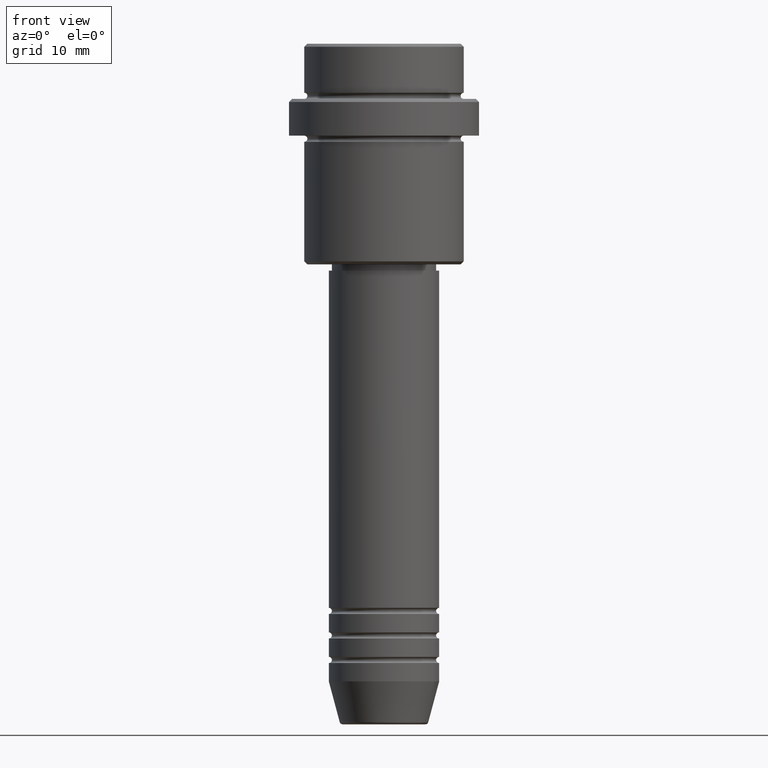
[diagram: clean part render]
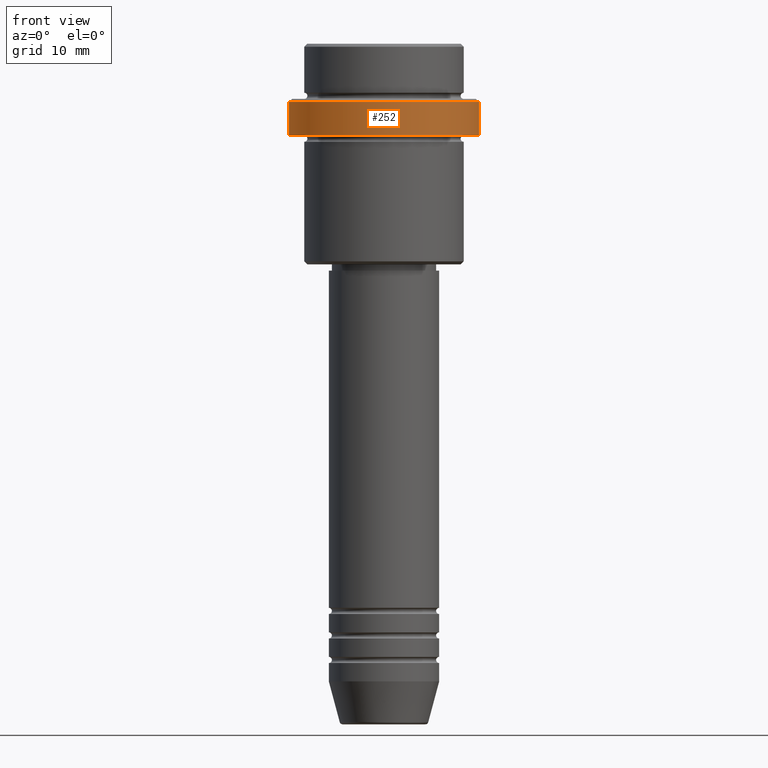
[diagram: same view with one face highlighted and labeled with its STEP entity id]
A machine part, front view. The second image highlights one B-rep face of the part: STEP entity #252.
In plain terms, the highlighted cylindrical surface (partial cylindrical patch) has radius 15.5 mm, axis along (-0, -0, 1).
Its self-contained STEP definition (entity closure, byte-faithful):
#15 = CYLINDRICAL_SURFACE ( 'NONE', #1055, 15.50000000000000000 ) ;
#17 = ORIENTED_EDGE ( 'NONE', *, *, #411, .T. ) ;
#59 = EDGE_LOOP ( 'NONE', ( #1164, #608, #17, #190 ) ) ;
#72 = EDGE_CURVE ( 'NONE', #233, #1320, #182, .T. ) ;
#123 = LINE ( 'NONE', #779, #505 ) ;
#148 = DIRECTION ( 'NONE',  ( -0.000000000000000000, -0.000000000000000000, 1.000000000000000000 ) ) ;
#182 = CIRCLE ( 'NONE', #986, 15.50000000000000000 ) ;
#190 = ORIENTED_EDGE ( 'NONE', *, *, #705, .T. ) ;
#233 = VERTEX_POINT ( 'NONE', #696 ) ;
#252 = ADVANCED_FACE ( 'NONE', ( #1305 ), #15, .T. ) ;
#371 = VERTEX_POINT ( 'NONE', #403 ) ;
#403 = CARTESIAN_POINT ( 'NONE',  ( 15.50000000000000000, 0.000000000000000000, -9.499999999999985789 ) ) ;
#411 = EDGE_CURVE ( 'NONE', #1320, #371, #549, .T. ) ;
#453 = DIRECTION ( 'NONE',  ( 1.000000000000000000, 0.000000000000000000, 0.000000000000000000 ) ) ;
#455 = CARTESIAN_POINT ( 'NONE',  ( 0.000000000000000000, 0.000000000000000000, 0.000000000000000000 ) ) ;
#481 = DIRECTION ( 'NONE',  ( 1.000000000000000000, 0.000000000000000000, 0.000000000000000000 ) ) ;
#500 = VECTOR ( 'NONE', #1185, 1000.000000000000000 ) ;
#505 = VECTOR ( 'NONE', #148, 1000.000000000000000 ) ;
#536 = DIRECTION ( 'NONE',  ( -0.000000000000000000, -0.000000000000000000, 1.000000000000000000 ) ) ;
#539 = CARTESIAN_POINT ( 'NONE',  ( 15.50000000000000000, 0.000000000000000000, 0.000000000000000000 ) ) ;
#549 = LINE ( 'NONE', #539, #500 ) ;
#596 = CARTESIAN_POINT ( 'NONE',  ( 0.000000000000000000, 0.000000000000000000, -15.00000000000000178 ) ) ;
#608 = ORIENTED_EDGE ( 'NONE', *, *, #72, .T. ) ;
#645 = VERTEX_POINT ( 'NONE', #1218 ) ;
#687 = DIRECTION ( 'NONE',  ( -0.000000000000000000, -0.000000000000000000, 1.000000000000000000 ) ) ;
#696 = CARTESIAN_POINT ( 'NONE',  ( -15.50000000000000000, 1.898202538678397557E-15, -15.00000000000000178 ) ) ;
#705 = EDGE_CURVE ( 'NONE', #371, #645, #793, .T. ) ;
#731 = CARTESIAN_POINT ( 'NONE',  ( 15.50000000000000000, 0.000000000000000000, -15.00000000000000178 ) ) ;
#755 = DIRECTION ( 'NONE',  ( 1.000000000000000000, 0.000000000000000000, 0.000000000000000000 ) ) ;
#779 = CARTESIAN_POINT ( 'NONE',  ( -15.50000000000000000, 1.898202538678397557E-15, 0.000000000000000000 ) ) ;
#793 = CIRCLE ( 'NONE', #1346, 15.50000000000000000 ) ;
#864 = DIRECTION ( 'NONE',  ( 0.000000000000000000, 0.000000000000000000, -1.000000000000000000 ) ) ;
#986 = AXIS2_PLACEMENT_3D ( 'NONE', #596, #687, #481 ) ;
#1055 = AXIS2_PLACEMENT_3D ( 'NONE', #455, #536, #755 ) ;
#1070 = EDGE_CURVE ( 'NONE', #233, #645, #123, .T. ) ;
#1164 = ORIENTED_EDGE ( 'NONE', *, *, #1070, .F. ) ;
#1185 = DIRECTION ( 'NONE',  ( -0.000000000000000000, -0.000000000000000000, 1.000000000000000000 ) ) ;
#1218 = CARTESIAN_POINT ( 'NONE',  ( -15.50000000000000000, 1.898202538678397557E-15, -9.499999999999985789 ) ) ;
#1305 = FACE_OUTER_BOUND ( 'NONE', #59, .T. ) ;
#1310 = CARTESIAN_POINT ( 'NONE',  ( 0.000000000000000000, 0.000000000000000000, -9.499999999999985789 ) ) ;
#1320 = VERTEX_POINT ( 'NONE', #731 ) ;
#1346 = AXIS2_PLACEMENT_3D ( 'NONE', #1310, #864, #453 ) ;